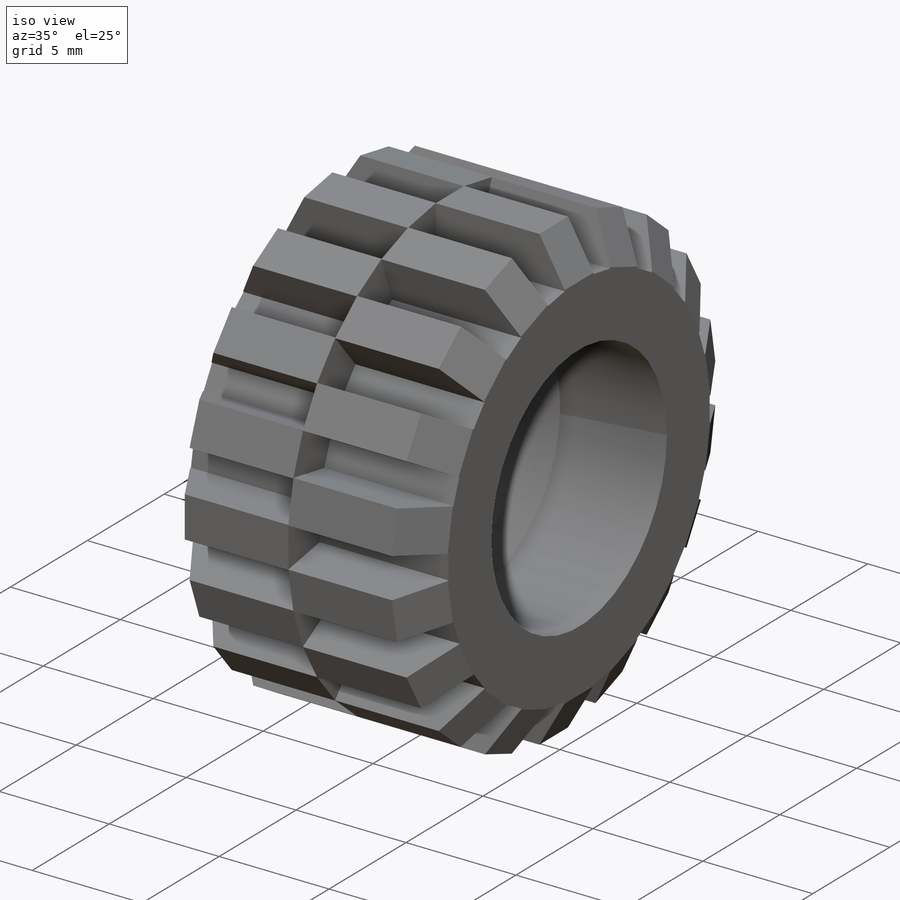
[diagram: iso view]
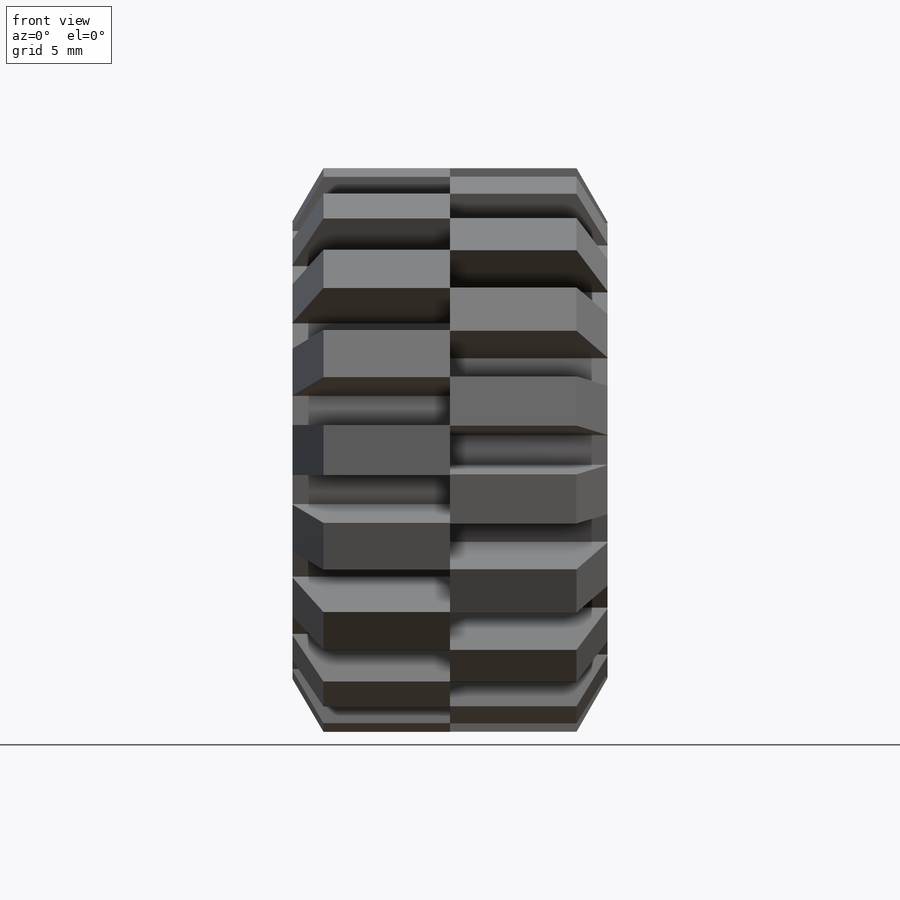
[diagram: front view]
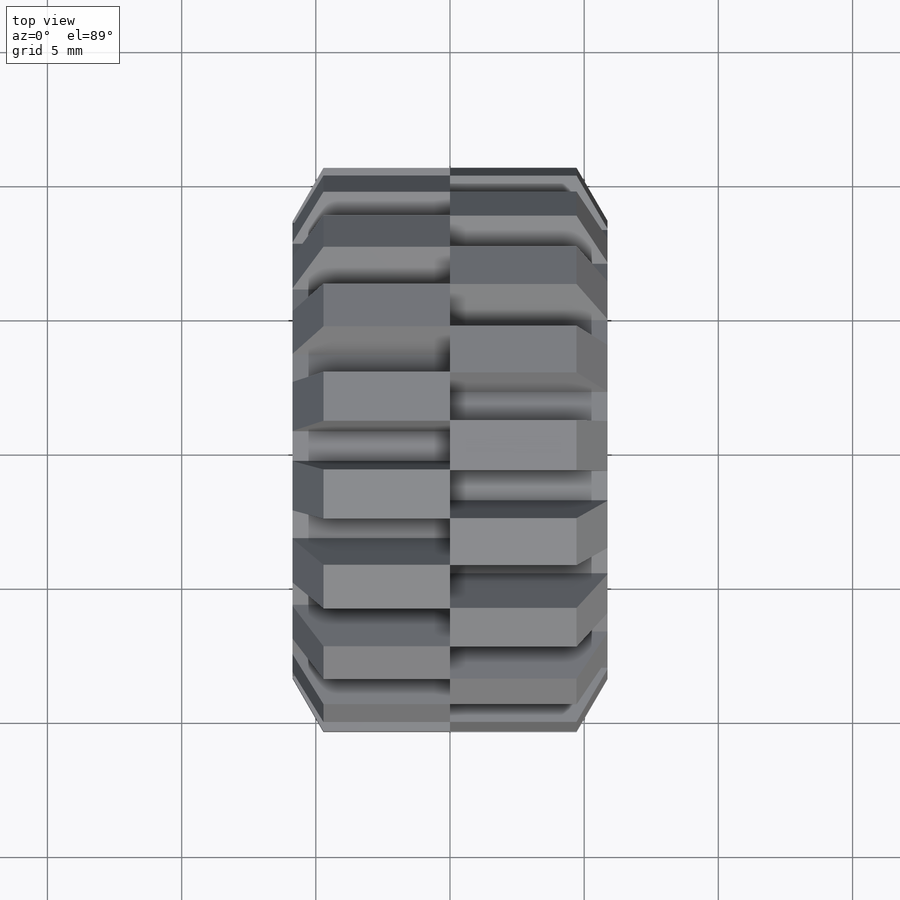
[diagram: top view]
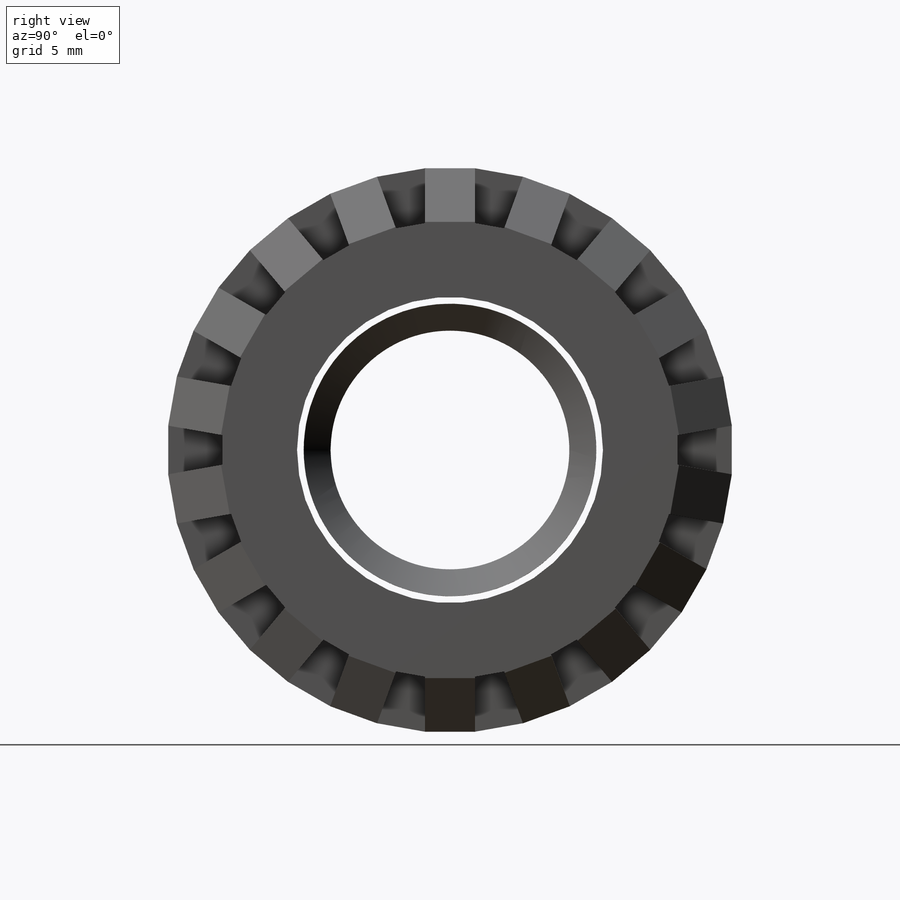
[diagram: right view]
SOLIDWORKS PART (.sldprt)
format: sldprt  version: not decoded by parser v0  size: 400,384 bytes
history: native  units: mm
features: sketch x4, extrude x3, material x1, chamfer x1, pattern_circular x1, revolve x1 (+14 scaffold rows collapsed)
feature tree (25):
  scaffold x14  (default folders/planes/origin — collapsed)
  material  "Material <not specified>"
  sketch  "Sketch1"  dims[D1=17.0mm D2=2.8mm]
  extrude  "Extrude1"  Depth=5.87mm
  sketch  "Sketch2"  dims[c1.D1=1.86mm c1.D2=~1.346129mm c2.D1=1.86mm]
  extrude  "Extrude2"  Depth=3.5mm
  sketch  "Sketch4"  dims[D1=1.86mm]
  extrude  "Extrude3"  Depth=3.5mm
  chamfer  "Chamfer1"  Distance=2mm Angle=30deg
  pattern_circular  "CirPattern3"  Count=18  [1 undecoded]
  sketch  "Sketch6"  dims[D1=0.8mm D2=1.0mm D3=2.38mm]
  revolve  "Revolve1"  [1 undecoded]
decode coverage: 9 of 10 modeling features carry decoded parameters
note: ~ marks probable driven/reference dimensions
note: 2 parameter values undecoded
note: suppression state not decoded; provenance and decode notes live in map.json
